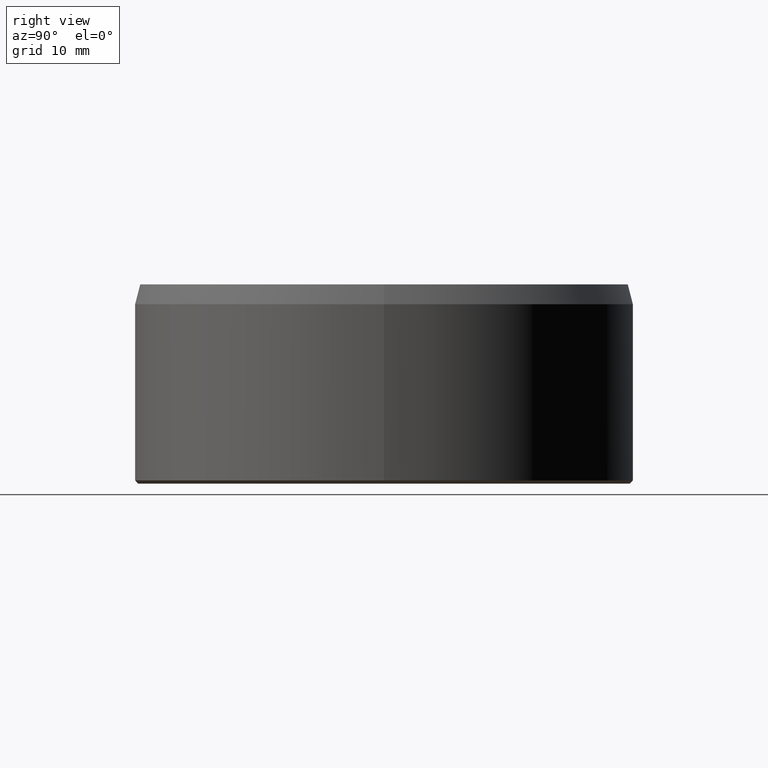
[diagram: clean part render]
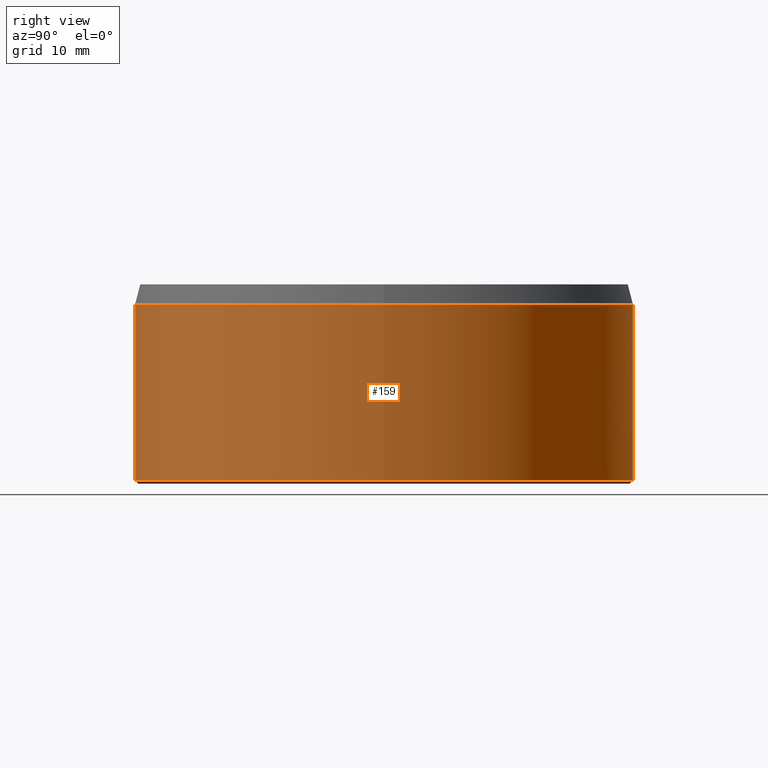
[diagram: same view with one face highlighted and labeled with its STEP entity id]
A machine part, right view. The second image highlights one B-rep face of the part: STEP entity #159.
In plain terms, the highlighted cylindrical surface (bore or boss wall) has radius 37.5 mm, axis along (0, -0, -1).
Its self-contained STEP definition (entity closure, byte-faithful):
#159=ADVANCED_FACE('',(#181,#182),#183,.T.);
#181=FACE_OUTER_BOUND('',#206,.T.);
#182=FACE_OUTER_BOUND('',#207,.T.);
#183=CYLINDRICAL_SURFACE('',#208,0.0375);
#206=EDGE_LOOP('',(#242));
#207=EDGE_LOOP('',(#243));
#208=AXIS2_PLACEMENT_3D('',#244,#245,#246);
#242=ORIENTED_EDGE('',*,*,#259,.T.);
#243=ORIENTED_EDGE('',*,*,#258,.F.);
#244=CARTESIAN_POINT('',(0.0,0.0,0.0));
#245=DIRECTION('',(0.0,-6.12323399573677E-017,-1.0));
#246=DIRECTION('',(0.0,1.0,-6.12323399573677E-017));
#258=EDGE_CURVE('',#272,#272,#273,.T.);
#259=EDGE_CURVE('',#274,#274,#275,.T.);
#272=VERTEX_POINT('',#288);
#273=CIRCLE('',#289,0.0375);
#274=VERTEX_POINT('',#290);
#275=CIRCLE('',#291,0.0375);
#288=CARTESIAN_POINT('',(0.0375,0.0,0.0005));
#289=AXIS2_PLACEMENT_3D('',#310,#311,#312);
#290=CARTESIAN_POINT('',(0.0375,1.73472347597681E-018,0.027));
#291=AXIS2_PLACEMENT_3D('',#313,#314,#315);
#310=CARTESIAN_POINT('',(0.0,0.0,0.0005));
#311=DIRECTION('',(0.0,-6.12323399573677E-017,-1.0));
#312=DIRECTION('',(0.0,1.0,-6.12323399573677E-017));
#313=CARTESIAN_POINT('',(0.0,1.73472347597681E-018,0.027));
#314=DIRECTION('',(0.0,-6.12323399573677E-017,-1.0));
#315=DIRECTION('',(0.0,1.0,-6.12323399573677E-017));